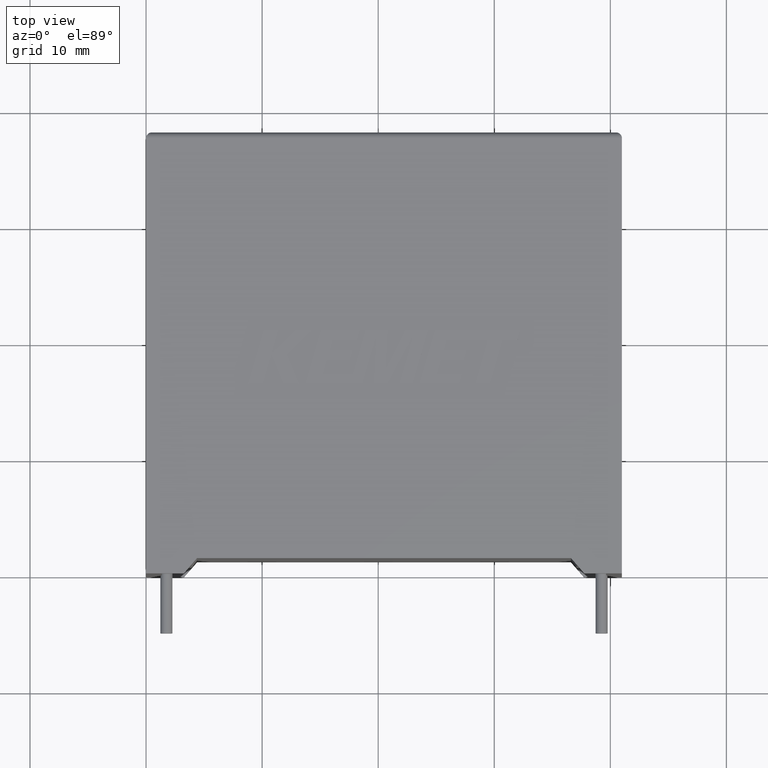
[diagram: clean part render]
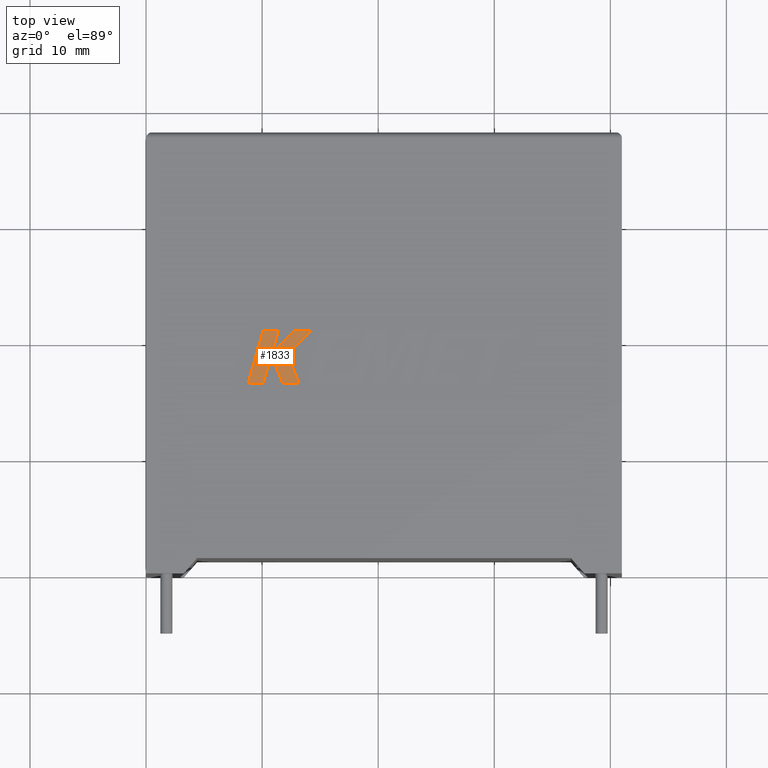
[diagram: same view with one face highlighted and labeled with its STEP entity id]
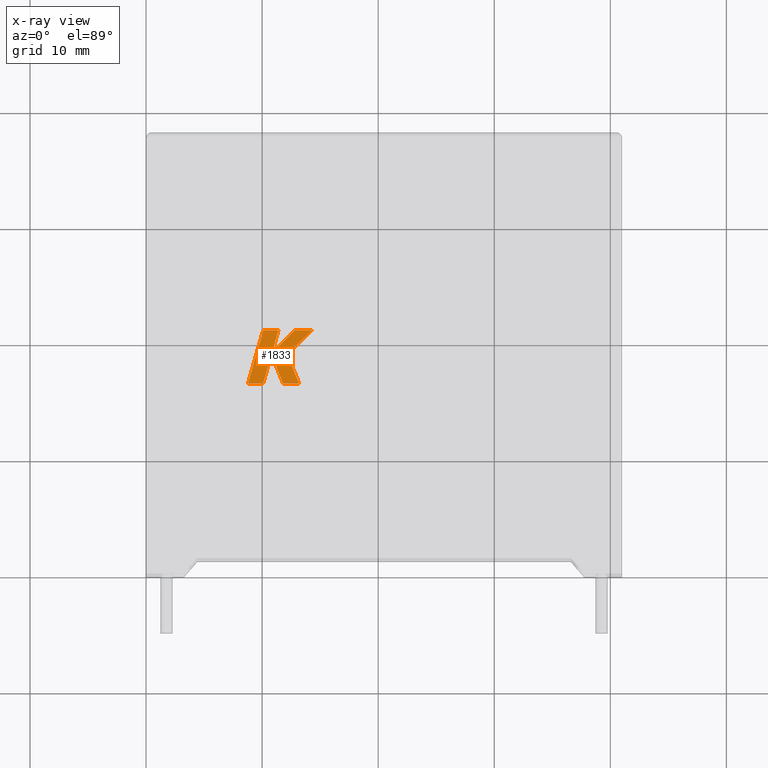
[diagram: x-ray of the same camera — body ghosted, the highlighted face saturated]
A machine part, top view. The second image highlights one B-rep face of the part: STEP entity #1833.
The next image is the same camera in x-ray: the body ghosted, the highlighted face saturated — about 0% of this face is hidden behind the body in this view.
In plain terms, the highlighted planar face has unit normal (0, 0, -1).
Its self-contained STEP definition (entity closure, byte-faithful):
#9 = CARTESIAN_POINT ( 'NONE',  ( 14.30710218600710704, 20.94374444033236671, 21.00500000000000256 ) ) ;
#59 = CARTESIAN_POINT ( 'NONE',  ( 10.08395273290344107, 16.35139999999985605, 21.00500000000000256 ) ) ;
#111 = CARTESIAN_POINT ( 'NONE',  ( 11.79953650650044317, 16.35139999999985960, 21.00500000000000256 ) ) ;
#128 = VERTEX_POINT ( 'NONE', #2642 ) ;
#148 = PLANE ( 'NONE',  #2634 ) ;
#191 = CARTESIAN_POINT ( 'NONE',  ( 8.778100000000000236, 16.35140000000000171, 21.00500000000000256 ) ) ;
#193 = VERTEX_POINT ( 'NONE', #437 ) ;
#236 = DIRECTION ( 'NONE',  ( 0.2755520632520602198, 0.9612861490927312458, 0.000000000000000000 ) ) ;
#260 = EDGE_CURVE ( 'NONE', #1984, #128, #475, .T. ) ;
#282 = DIRECTION ( 'NONE',  ( -0.3829140317376762970, 0.9237839814038765196, 0.000000000000000000 ) ) ;
#304 = DIRECTION ( 'NONE',  ( 0.2755265765475026218, 0.9612934544747576693, 0.000000000000000000 ) ) ;
#331 = VERTEX_POINT ( 'NONE', #1040 ) ;
#414 = CARTESIAN_POINT ( 'NONE',  ( 12.16325780466117479, 18.84491839288259740, 21.00500000000000256 ) ) ;
#437 = CARTESIAN_POINT ( 'NONE',  ( 11.40545855884007942, 20.94374444033236671, 21.00500000000000256 ) ) ;
#475 = LINE ( 'NONE', #2007, #712 ) ;
#485 = ORIENTED_EDGE ( 'NONE', *, *, #492, .T. ) ;
#488 = CARTESIAN_POINT ( 'NONE',  ( 11.40545855884007942, 20.94374444033236671, 21.00500000000000256 ) ) ;
#491 = ORIENTED_EDGE ( 'NONE', *, *, #260, .T. ) ;
#492 = EDGE_CURVE ( 'NONE', #2954, #994, #794, .T. ) ;
#605 = VECTOR ( 'NONE', #2452, 1000.000000000000000 ) ;
#613 = DIRECTION ( 'NONE',  ( -1.000000000000000000, -0.000000000000000000, -0.000000000000000000 ) ) ;
#679 = EDGE_CURVE ( 'NONE', #193, #2018, #2338, .T. ) ;
#712 = VECTOR ( 'NONE', #1263, 1000.000000000000114 ) ;
#775 = CARTESIAN_POINT ( 'NONE',  ( 10.79864665196751083, 18.84491839288256898, 21.00500000000000256 ) ) ;
#794 = LINE ( 'NONE', #2287, #1280 ) ;
#806 = CARTESIAN_POINT ( 'NONE',  ( 13.19683621720277955, 16.35139999999985960, 21.00500000000000256 ) ) ;
#812 = LINE ( 'NONE', #1558, #3187 ) ;
#849 = LINE ( 'NONE', #2567, #2274 ) ;
#891 = DIRECTION ( 'NONE',  ( 1.000000000000000000, 0.000000000000000000, 0.000000000000000000 ) ) ;
#975 = EDGE_CURVE ( 'NONE', #1135, #2094, #2428, .T. ) ;
#994 = VERTEX_POINT ( 'NONE', #414 ) ;
#1040 = CARTESIAN_POINT ( 'NONE',  ( 10.79864665196751083, 18.84491839288256898, 21.00500000000000256 ) ) ;
#1135 = VERTEX_POINT ( 'NONE', #191 ) ;
#1144 = ORIENTED_EDGE ( 'NONE', *, *, #1357, .T. ) ;
#1157 = DIRECTION ( 'NONE',  ( -1.000000000000000000, 0.000000000000000000, 0.000000000000000000 ) ) ;
#1186 = VECTOR ( 'NONE', #1198, 1000.000000000000000 ) ;
#1198 = DIRECTION ( 'NONE',  ( 1.000000000000000000, -1.104435275910379499E-13, 0.000000000000000000 ) ) ;
#1226 = LINE ( 'NONE', #9, #3195 ) ;
#1263 = DIRECTION ( 'NONE',  ( -0.7059037656364501867, -0.7083077534943971187, -0.000000000000000000 ) ) ;
#1280 = VECTOR ( 'NONE', #282, 1000.000000000000227 ) ;
#1343 = DIRECTION ( 'NONE',  ( 0.3725077383643967122, -0.9280290862137037244, 0.000000000000000000 ) ) ;
#1357 = EDGE_CURVE ( 'NONE', #3155, #2954, #812, .T. ) ;
#1530 = CARTESIAN_POINT ( 'NONE',  ( 10.09786038450853241, 20.94374444033236671, 21.00500000000000256 ) ) ;
#1552 = EDGE_CURVE ( 'NONE', #2930, #1984, #2746, .T. ) ;
#1558 = CARTESIAN_POINT ( 'NONE',  ( 13.19683621720277955, 16.35139999999985960, 21.00500000000000256 ) ) ;
#1632 = EDGE_LOOP ( 'NONE', ( #2088, #2352, #2190, #1794, #1144, #485, #2392, #3149, #491, #1836, #3152 ) ) ;
#1710 = DIRECTION ( 'NONE',  ( 0.000000000000000000, 0.000000000000000000, -1.000000000000000000 ) ) ;
#1769 = CARTESIAN_POINT ( 'NONE',  ( 14.30710218600710704, 20.94374444033236671, 21.00500000000000256 ) ) ;
#1794 = ORIENTED_EDGE ( 'NONE', *, *, #2142, .T. ) ;
#1820 = VECTOR ( 'NONE', #304, 1000.000000000000227 ) ;
#1833 = ADVANCED_FACE ( 'NONE', ( #3099 ), #148, .F. ) ;
#1836 = ORIENTED_EDGE ( 'NONE', *, *, #2255, .T. ) ;
#1967 = CARTESIAN_POINT ( 'NONE',  ( 12.79580444558357399, 20.94374444033236671, 21.00500000000000256 ) ) ;
#1980 = LINE ( 'NONE', #488, #2536 ) ;
#1984 = VERTEX_POINT ( 'NONE', #1967 ) ;
#2007 = CARTESIAN_POINT ( 'NONE',  ( 10.84409785441146568, 18.98539122227447962, 21.00500000000000256 ) ) ;
#2018 = VERTEX_POINT ( 'NONE', #1530 ) ;
#2088 = ORIENTED_EDGE ( 'NONE', *, *, #2910, .T. ) ;
#2094 = VERTEX_POINT ( 'NONE', #59 ) ;
#2130 = CARTESIAN_POINT ( 'NONE',  ( 12.79580444558357399, 20.94374444033236671, 21.00500000000000256 ) ) ;
#2142 = EDGE_CURVE ( 'NONE', #331, #3155, #849, .T. ) ;
#2190 = ORIENTED_EDGE ( 'NONE', *, *, #2344, .T. ) ;
#2209 = DIRECTION ( 'NONE',  ( 0.7145695586382624365, 0.6995643972269591782, 0.000000000000000000 ) ) ;
#2239 = DIRECTION ( 'NONE',  ( -0.2762033010252004650, -0.9610992334315860974, -0.000000000000000000 ) ) ;
#2255 = EDGE_CURVE ( 'NONE', #128, #193, #1980, .T. ) ;
#2274 = VECTOR ( 'NONE', #1343, 1000.000000000000227 ) ;
#2287 = CARTESIAN_POINT ( 'NONE',  ( 12.16325780466117479, 18.84491839288259740, 21.00500000000000256 ) ) ;
#2338 = LINE ( 'NONE', #2807, #2374 ) ;
#2344 = EDGE_CURVE ( 'NONE', #2094, #331, #3021, .T. ) ;
#2352 = ORIENTED_EDGE ( 'NONE', *, *, #975, .T. ) ;
#2374 = VECTOR ( 'NONE', #613, 1000.000000000000000 ) ;
#2392 = ORIENTED_EDGE ( 'NONE', *, *, #2912, .T. ) ;
#2428 = LINE ( 'NONE', #3140, #1186 ) ;
#2452 = DIRECTION ( 'NONE',  ( -1.000000000000000000, -0.000000000000000000, -0.000000000000000000 ) ) ;
#2490 = CARTESIAN_POINT ( 'NONE',  ( 8.778100000000000236, 16.35140000000000171, 21.00500000000000256 ) ) ;
#2536 = VECTOR ( 'NONE', #236, 1000.000000000000114 ) ;
#2567 = CARTESIAN_POINT ( 'NONE',  ( 11.79953650650044317, 16.35139999999985960, 21.00500000000000256 ) ) ;
#2634 = AXIS2_PLACEMENT_3D ( 'NONE', #2926, #1710, #1157 ) ;
#2642 = CARTESIAN_POINT ( 'NONE',  ( 10.84409785441146568, 18.98539122227447962, 21.00500000000000256 ) ) ;
#2746 = LINE ( 'NONE', #2130, #605 ) ;
#2807 = CARTESIAN_POINT ( 'NONE',  ( 10.09786038450853241, 20.94374444033236671, 21.00500000000000256 ) ) ;
#2910 = EDGE_CURVE ( 'NONE', #2018, #1135, #3204, .T. ) ;
#2912 = EDGE_CURVE ( 'NONE', #994, #2930, #1226, .T. ) ;
#2926 = CARTESIAN_POINT ( 'NONE',  ( -0.4984593669328484244, 1.487473959261242928, 21.00499999999999545 ) ) ;
#2930 = VERTEX_POINT ( 'NONE', #1769 ) ;
#2943 = VECTOR ( 'NONE', #2239, 1000.000000000000227 ) ;
#2954 = VERTEX_POINT ( 'NONE', #806 ) ;
#3021 = LINE ( 'NONE', #775, #1820 ) ;
#3099 = FACE_OUTER_BOUND ( 'NONE', #1632, .T. ) ;
#3140 = CARTESIAN_POINT ( 'NONE',  ( 10.08395273290344107, 16.35139999999985605, 21.00500000000000256 ) ) ;
#3149 = ORIENTED_EDGE ( 'NONE', *, *, #1552, .T. ) ;
#3152 = ORIENTED_EDGE ( 'NONE', *, *, #679, .T. ) ;
#3155 = VERTEX_POINT ( 'NONE', #111 ) ;
#3187 = VECTOR ( 'NONE', #891, 1000.000000000000000 ) ;
#3195 = VECTOR ( 'NONE', #2209, 1000.000000000000114 ) ;
#3204 = LINE ( 'NONE', #2490, #2943 ) ;